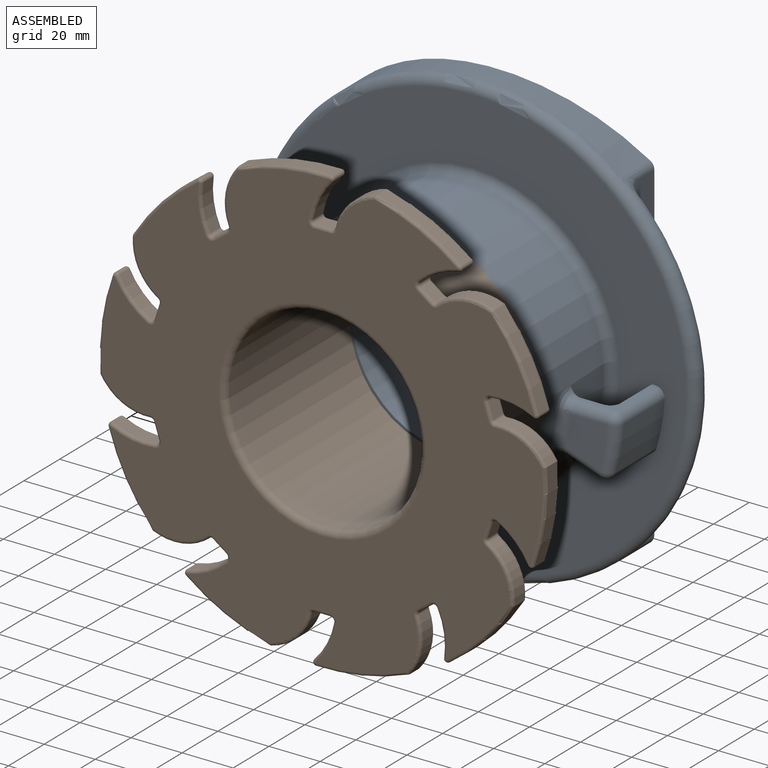
[diagram: assembled view]
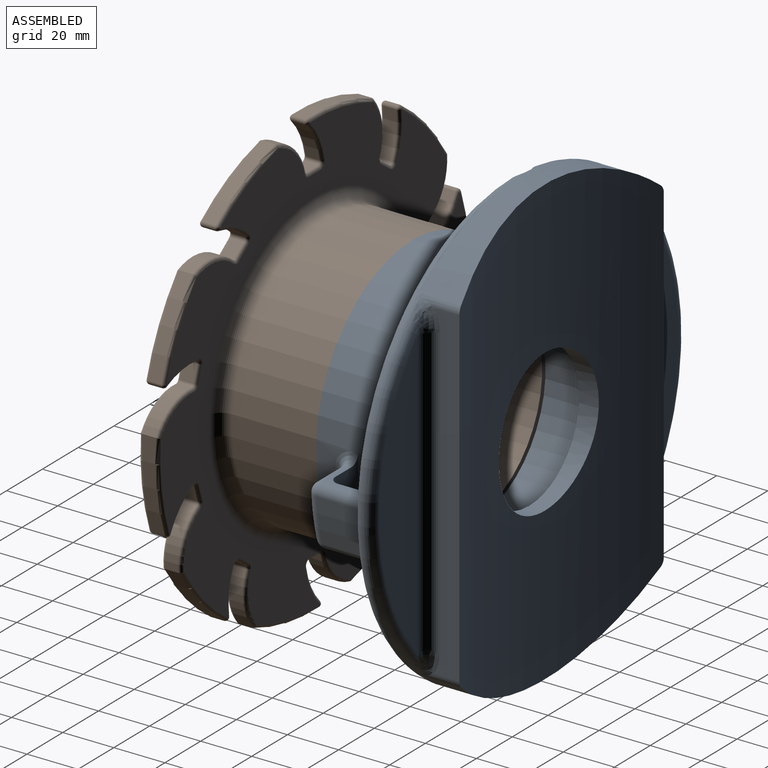
[diagram: assembled view, second angle]
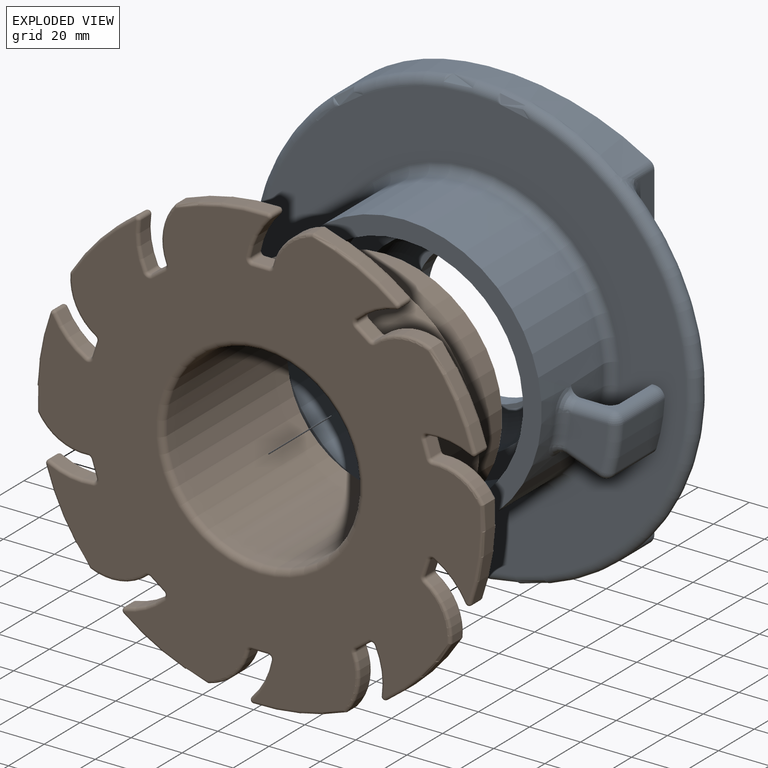
[diagram: exploded view]
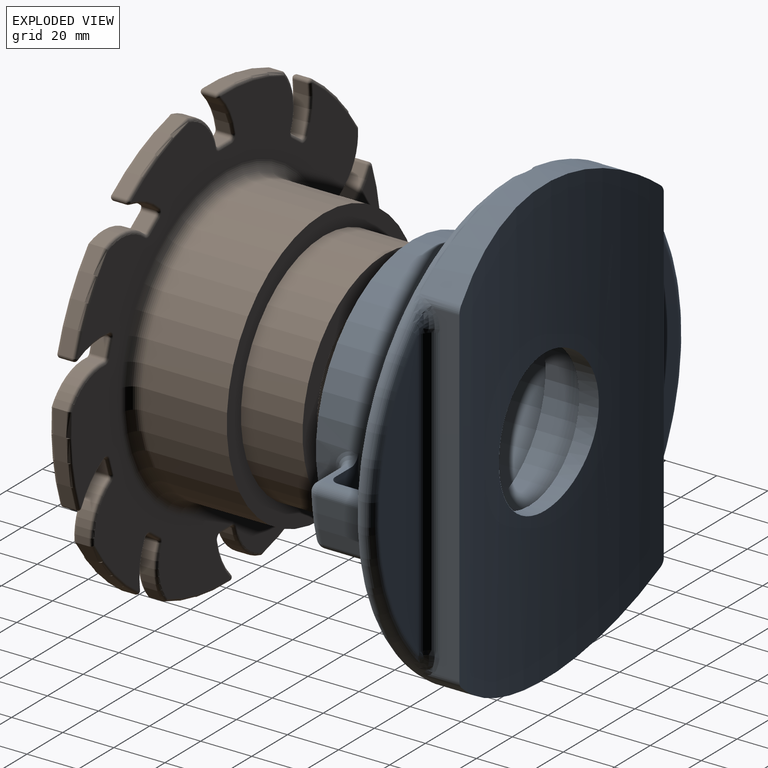
[diagram: exploded view, second angle]
ASSEMBLY  parts=2 mates=2
PART A: 50 faces, bbox 189.7x58.4x189.7 mm
  f0: cylinder r=38.1mm len=76.2mm, axis (0,1,0), area 2432.2mm2, adj f35,f49
  f1: cylinder r=53.98mm len=107.95mm, axis (0,1,0), area 11421.4mm2, adj f11,f18,f22,f24,f26,f27,f34,f47
  f2: cylinder r=87.63mm len=111.53mm, axis (0,-1,0), area 1474mm2, adj f7,f29,f31,f32
  f3: plane 167.64x167.64mm, normal (0,-1,0), area 11459.3mm2, adj f10,f13,f14,f15,f16,f21,f31,f34
  f4: plane 112.31x21.59mm, normal (0,1,0), area 1663.3mm2, adj f31,f38
  f5: cylinder r=87.63mm len=111.53mm, axis (0,-1,0), area 1474mm2, adj f7,f30,f31,f33
  f6: plane 112.31x21.59mm, normal (0,1,0), area 1663.3mm2, adj f31,f43
  f7: cylinder r=254mm len=175.27mm, axis (0,0,-1), area 16193.7mm2, adj f2,f5,f8,f9,f29,f30,f32,f33
  f8: plane 129.33x9.88mm, normal (1,0,0), area 997.2mm2, adj f7,f29,f30,f42,f43,f44
  f9: plane 129.33x9.88mm, normal (-1,0,0), area 997.2mm2, adj f7,f32,f33,f37,f38,f39
  f10: cylinder r=70.48mm len=24.11mm, axis (0,-1,0), area 437.5mm2, adj f3,f14,f15,f28
  f11: plane 26.36x17.28mm, normal (0,1,0), area 273mm2, adj f1,f14,f15,f18,f27,f28
  f12: plane 17.12x16.17mm, normal (0,-1,0), area 209.3mm2, adj f19,f20,f24,f25
  f13: cylinder r=75.56mm len=22.86mm, axis (0,-1,0), area 419.5mm2, adj f3,f16,f20,f21
  f14: plane 22.86x13.15mm, normal (-0.34,0,-0.94), area 46.1mm2, adj f3,f10,f11,f21,f25,f27,f28
  f15: plane 22.86x13.99mm, normal (0,0,1), area 46.1mm2, adj f3,f10,f11,f16,f18,f19,f28
  f16: cylinder r=3.81mm len=22.86mm, axis (0,-1,0), area 141.4mm2, adj f3,f13,f15,f17
  f17: sphere r=3.81mm, area 23.6mm2, adj f16,f19,f20
  f18: cylinder r=3.81mm len=3.8mm, axis (0,1,0), area 7.3mm2, adj f1,f11,f15,f22
  f19: cylinder r=3.81mm len=13.99mm, axis (1,0,0), area 83.3mm2, adj f12,f15,f17,f22
  f20: torus R=71.75mm, axis (0,-1,0), area 107.8mm2, adj f12,f13,f17,f23
  f21: cylinder r=3.81mm len=22.86mm, axis (0,-1,0), area 141.4mm2, adj f3,f13,f14,f23
  f22: bspline ~8.88x8.71mm, area 46.8mm2, adj f1,f18,f19,f24
  f23: sphere r=3.81mm, area 23.6mm2, adj f20,f21,f25
  f24: torus R=57.79mm, axis (0,-1,0), area 71.9mm2, adj f1,f12,f22,f26
  f25: cylinder r=3.81mm len=14.45mm, axis (-0.94,0,0.34), area 83.3mm2, adj f12,f14,f23,f26
  f26: bspline ~9.33x7.84mm, area 46.8mm2, adj f1,f24,f25,f27
  f27: cylinder r=3.81mm len=4.79mm, axis (0,1,0), area 7.3mm2, adj f1,f11,f14,f26
  f28: torus R=66.67mm, axis (0,-1,0), area 144.4mm2, adj f10,f11,f14,f15
  f29: cylinder r=3.81mm len=16.51mm, axis (0,-1,0), area 43.2mm2, adj f2,f7,f8,f45
  f30: cylinder r=3.81mm len=16.51mm, axis (0,-1,0), area 43.2mm2, adj f5,f7,f8,f41
  f31: torus R=83.82mm, axis (0,1,0), area 4914.3mm2, adj f2,f3,f4,f5,f6,f36,f37,f39
  f32: cylinder r=3.81mm len=16.51mm, axis (0,-1,0), area 43.2mm2, adj f2,f7,f9,f40
  f33: cylinder r=3.81mm len=16.51mm, axis (0,-1,0), area 43.2mm2, adj f5,f7,f9,f36
  f34: torus R=57.79mm, axis (0,1,0), area 2081.7mm2, adj f1,f3
  f35: torus R=27.94mm, axis (0,1,0), area 3450.3mm2, adj f0,f46
  f36: bspline ~7.62x6.5mm, area 18.2mm2, adj f31,f33,f37
  f37: bspline ~11.68x6.31mm, area 49.2mm2, adj f9,f31,f36,f38
  f38: cylinder r=5.08mm len=112.31mm, axis (0,0,-1), area 896.2mm2, adj f4,f9,f37,f39
  f39: bspline ~11.04x6.11mm, area 49.2mm2, adj f9,f31,f38,f40
  f40: bspline ~7.62x6.5mm, area 18.2mm2, adj f31,f32,f39
  f41: bspline ~7.62x6.5mm, area 18.2mm2, adj f30,f31,f42
  f42: bspline ~11.68x6.31mm, area 49.2mm2, adj f8,f31,f41,f43
  f43: cylinder r=5.08mm len=112.31mm, axis (0,0,1), area 896.2mm2, adj f6,f8,f42,f44
  f44: bspline ~11.04x6.11mm, area 49.2mm2, adj f8,f31,f43,f45
  f45: bspline ~7.62x6.5mm, area 18.2mm2, adj f29,f31,f44
  f46: cylinder r=27.94mm len=55.88mm, axis (0,-1,0), area 1221.1mm2, adj f7,f35
  f47: plane 107.95x107.95mm, normal (0,-1,0), area 2309mm2, adj f1,f48
  f48: cylinder r=46.67mm len=93.35mm, axis (0,-1,0), area 7448.6mm2, adj f47,f49
  f49: plane 93.35x93.35mm, normal (0,-1,0), area 2283mm2, adj f0,f48
PART B: 219 faces, bbox 189.7x69.9x189.7 mm
  f0: cylinder r=87.63mm len=33.25mm, axis (0,1,0), area 188.9mm2, adj f16,f71,f133,f204
  f1: plane 172.72x172.72mm, normal (0,1,0), area 9986.7mm2, adj f75,f76,f77,f78,f80,f81,f82,f83
  f2: cylinder r=87.63mm len=32.5mm, axis (0,1,0), area 188.9mm2, adj f65,f70,f144,f213
  f3: cylinder r=87.63mm len=36.57mm, axis (0,1,0), area 188.9mm2, adj f59,f64,f130,f199
  f4: cylinder r=87.63mm len=26.67mm, axis (0,1,0), area 188.9mm2, adj f53,f58,f116,f185
  f5: cylinder r=87.63mm len=36.31mm, axis (0,1,0), area 188.9mm2, adj f47,f52,f102,f171
  f6: cylinder r=87.63mm len=33.25mm, axis (0,1,0), area 188.9mm2, adj f41,f46,f88,f157
  f7: cylinder r=87.63mm len=32.5mm, axis (0,1,0), area 188.9mm2, adj f35,f40,f77,f148
  f8: cylinder r=87.63mm len=36.57mm, axis (0,1,0), area 188.9mm2, adj f29,f34,f91,f162
  f9: cylinder r=87.63mm len=26.67mm, axis (0,1,0), area 188.9mm2, adj f23,f28,f105,f176
  f10: cylinder r=87.63mm len=36.31mm, axis (0,1,0), area 188.9mm2, adj f17,f22,f119,f190
  f11: cylinder r=38.1mm len=76.2mm, axis (0,1,0), area 16113.3mm2, adj f74,f218
  f12: cylinder r=53.98mm len=107.95mm, axis (0,1,0), area 11198.2mm2, adj f75,f216
  f13: plane 172.72x172.72mm, normal (0,-1,0), area 15754.3mm2, adj f74,f146,f147,f148,f149,f151,f152,f153
  f14: cylinder r=29.83mm len=15.35mm, axis (0,-1,0), area 89mm2, adj f17,f18,f123,f194
  f15: plane 6.38x5.08mm, normal (0,0,1), area 32.4mm2, adj f18,f19,f127,f198
  f16: cylinder r=21.05mm len=15.89mm, axis (0,-1,0), area 119.3mm2, adj f0,f19,f131,f202
  f17: cylinder r=1.27mm len=5.08mm, axis (0,1,0), area 14.9mm2, adj f10,f14,f121,f192
  f18: cylinder r=1.27mm len=5.08mm, axis (0,-1,0), area 11.3mm2, adj f14,f15,f125,f196
  f19: cylinder r=1.27mm len=5.08mm, axis (0,-1,0), area 8.6mm2, adj f15,f16,f129,f200
  f20: cylinder r=29.83mm len=17.08mm, axis (0,-1,0), area 89mm2, adj f23,f24,f109,f180
  f21: plane 5.16x5.08mm, normal (-0.59,0,0.81), area 32.4mm2, adj f24,f25,f113,f184
  f22: cylinder r=21.05mm len=21.99mm, axis (0,-1,0), area 119.3mm2, adj f10,f25,f117,f188
  f23: cylinder r=1.27mm len=5.08mm, axis (0,1,0), area 14.9mm2, adj f9,f20,f107,f178
  f24: cylinder r=1.27mm len=5.08mm, axis (0,-1,0), area 11.3mm2, adj f20,f21,f111,f182
  f25: cylinder r=1.27mm len=5.08mm, axis (0,-1,0), area 8.6mm2, adj f21,f22,f115,f186
  f26: cylinder r=29.83mm len=12.29mm, axis (0,-1,0), area 89mm2, adj f29,f30,f95,f166
  f27: plane 6.06x5.08mm, normal (-0.95,0,0.31), area 32.4mm2, adj f30,f31,f99,f170
  f28: cylinder r=21.05mm len=19.95mm, axis (0,-1,0), area 119.3mm2, adj f9,f31,f103,f174
  f29: cylinder r=1.27mm len=5.08mm, axis (0,1,0), area 14.9mm2, adj f8,f26,f93,f164
  f30: cylinder r=1.27mm len=5.08mm, axis (0,-1,0), area 11.3mm2, adj f26,f27,f97,f168
  f31: cylinder r=1.27mm len=5.08mm, axis (0,-1,0), area 8.6mm2, adj f27,f28,f101,f172
  f32: cylinder r=29.83mm len=17.05mm, axis (0,-1,0), area 89mm2, adj f35,f36,f81,f152
  f33: plane 6.06x5.08mm, normal (-0.95,0,-0.31), area 32.4mm2, adj f36,f37,f85,f156
  f34: cylinder r=21.05mm len=19.78mm, axis (0,-1,0), area 119.3mm2, adj f8,f37,f89,f160
  f35: cylinder r=1.27mm len=5.08mm, axis (0,1,0), area 14.9mm2, adj f7,f32,f79,f150
  f36: cylinder r=1.27mm len=5.08mm, axis (0,-1,0), area 11.3mm2, adj f32,f33,f83,f154
  f37: cylinder r=1.27mm len=5.08mm, axis (0,-1,0), area 8.6mm2, adj f33,f34,f87,f158
  f38: cylinder r=29.83mm len=15.44mm, axis (0,-1,0), area 89mm2, adj f41,f42,f84,f153
  f39: plane 5.16x5.08mm, normal (-0.59,0,-0.81), area 32.4mm2, adj f42,f43,f80,f149
  f40: cylinder r=21.05mm len=22.05mm, axis (0,-1,0), area 119.3mm2, adj f7,f43,f76,f146
  f41: cylinder r=1.27mm len=5.08mm, axis (0,1,0), area 14.9mm2, adj f6,f38,f86,f155
  f42: cylinder r=1.27mm len=5.08mm, axis (0,-1,0), area 11.3mm2, adj f38,f39,f82,f151
  f43: cylinder r=1.27mm len=5.08mm, axis (0,-1,0), area 8.6mm2, adj f39,f40,f78,f147
  f44: cylinder r=29.83mm len=15.35mm, axis (0,-1,0), area 89mm2, adj f47,f48,f98,f167
  f45: plane 6.38x5.08mm, normal (0,0,-1), area 32.4mm2, adj f48,f49,f94,f163
  f46: cylinder r=21.05mm len=15.89mm, axis (0,-1,0), area 119.3mm2, adj f6,f49,f90,f159
  f47: cylinder r=1.27mm len=5.08mm, axis (0,1,0), area 14.9mm2, adj f5,f44,f100,f169
  f48: cylinder r=1.27mm len=5.08mm, axis (0,-1,0), area 11.3mm2, adj f44,f45,f96,f165
  f49: cylinder r=1.27mm len=5.08mm, axis (0,-1,0), area 8.6mm2, adj f45,f46,f92,f161
  f50: cylinder r=29.83mm len=17.08mm, axis (0,-1,0), area 89mm2, adj f53,f54,f112,f181
  f51: plane 5.16x5.08mm, normal (0.59,0,-0.81), area 32.4mm2, adj f54,f55,f108,f177
  f52: cylinder r=21.05mm len=21.99mm, axis (0,-1,0), area 119.3mm2, adj f5,f55,f104,f173
  f53: cylinder r=1.27mm len=5.08mm, axis (0,1,0), area 14.9mm2, adj f4,f50,f114,f183
  f54: cylinder r=1.27mm len=5.08mm, axis (0,-1,0), area 11.3mm2, adj f50,f51,f110,f179
  f55: cylinder r=1.27mm len=5.08mm, axis (0,-1,0), area 8.6mm2, adj f51,f52,f106,f175
  f56: cylinder r=29.83mm len=12.29mm, axis (0,-1,0), area 89mm2, adj f59,f60,f126,f195
  f57: plane 6.06x5.08mm, normal (0.95,0,-0.31), area 32.4mm2, adj f60,f61,f122,f191
  f58: cylinder r=21.05mm len=19.95mm, axis (0,-1,0), area 119.3mm2, adj f4,f61,f118,f187
  f59: cylinder r=1.27mm len=5.08mm, axis (0,1,0), area 14.9mm2, adj f3,f56,f128,f197
  f60: cylinder r=1.27mm len=5.08mm, axis (0,-1,0), area 11.3mm2, adj f56,f57,f124,f193
  f61: cylinder r=1.27mm len=5.08mm, axis (0,-1,0), area 8.6mm2, adj f57,f58,f120,f189
  f62: cylinder r=29.83mm len=17.05mm, axis (0,-1,0), area 89mm2, adj f65,f66,f140,f209
  f63: plane 6.06x5.08mm, normal (0.95,0,0.31), area 32.4mm2, adj f66,f67,f136,f205
  f64: cylinder r=21.05mm len=19.78mm, axis (0,-1,0), area 119.3mm2, adj f3,f67,f132,f201
  f65: cylinder r=1.27mm len=5.08mm, axis (0,1,0), area 14.9mm2, adj f2,f62,f142,f211
  f66: cylinder r=1.27mm len=5.08mm, axis (0,-1,0), area 11.3mm2, adj f62,f63,f138,f207
  f67: cylinder r=1.27mm len=5.08mm, axis (0,-1,0), area 8.6mm2, adj f63,f64,f134,f203
  f68: cylinder r=29.83mm len=15.44mm, axis (0,-1,0), area 89mm2, adj f71,f72,f137,f208
  f69: plane 5.16x5.08mm, normal (0.59,0,0.81), area 32.4mm2, adj f72,f73,f141,f212
  f70: cylinder r=21.05mm len=22.05mm, axis (0,-1,0), area 119.3mm2, adj f2,f73,f145,f215
  f71: cylinder r=1.27mm len=5.08mm, axis (0,1,0), area 14.9mm2, adj f0,f68,f135,f206
  f72: cylinder r=1.27mm len=5.08mm, axis (0,-1,0), area 11.3mm2, adj f68,f69,f139,f210
  f73: cylinder r=1.27mm len=5.08mm, axis (0,-1,0), area 8.6mm2, adj f69,f70,f143,f214
  f74: torus R=40.64mm, axis (0,-1,0), area 978.3mm2, adj f11,f13
  f75: torus R=59.06mm, axis (0,-1,0), area 2798.7mm2, adj f1,f12
  f76: torus R=19.78mm, axis (0,-1,0), area 45.6mm2, adj f1,f40,f77,f78
  f77: torus R=86.36mm, axis (0,-1,0), area 73.6mm2, adj f1,f7,f76,f79
  f78: torus R=2.54mm, axis (0,-1,0), area 4.6mm2, adj f1,f43,f76,f80
  f79: sphere r=1.27mm, area 3.7mm2, adj f35,f77,f81
  f80: cylinder r=1.27mm len=5.91mm, axis (0.81,0,-0.59), area 12.7mm2, adj f1,f39,f78,f82
  f81: torus R=31.1mm, axis (0,-1,0), area 35.5mm2, adj f1,f32,f79,f83
  f82: torus R=2.54mm, axis (0,-1,0), area 6.1mm2, adj f1,f42,f80,f84
  f83: torus R=2.54mm, axis (0,-1,0), area 6.1mm2, adj f1,f36,f81,f85
  f84: torus R=31.1mm, axis (0,-1,0), area 35.5mm2, adj f1,f38,f82,f86
  f85: cylinder r=1.27mm len=6.46mm, axis (0.31,0,-0.95), area 12.7mm2, adj f1,f33,f83,f87
  f86: sphere r=1.27mm, area 3.7mm2, adj f41,f84,f88
  f87: torus R=2.54mm, axis (0,-1,0), area 4.6mm2, adj f1,f37,f85,f89
  f88: torus R=86.36mm, axis (0,-1,0), area 73.6mm2, adj f1,f6,f86,f90
  f89: torus R=19.78mm, axis (0,-1,0), area 45.6mm2, adj f1,f34,f87,f91
  f90: torus R=19.78mm, axis (0,-1,0), area 45.6mm2, adj f1,f46,f88,f92
  f91: torus R=86.36mm, axis (0,-1,0), area 73.6mm2, adj f1,f8,f89,f93
  f92: torus R=2.54mm, axis (0,-1,0), area 4.6mm2, adj f1,f49,f90,f94
  f93: sphere r=1.27mm, area 3.7mm2, adj f29,f91,f95
  f94: cylinder r=1.27mm len=6.38mm, axis (1,0,0), area 12.7mm2, adj f1,f45,f92,f96
  f95: torus R=31.1mm, axis (0,-1,0), area 35.5mm2, adj f1,f26,f93,f97
  f96: torus R=2.54mm, axis (0,-1,0), area 6.1mm2, adj f1,f48,f94,f98
  f97: torus R=2.54mm, axis (0,-1,0), area 6.1mm2, adj f1,f30,f95,f99
  f98: torus R=31.1mm, axis (0,-1,0), area 35.5mm2, adj f1,f44,f96,f100
  f99: cylinder r=1.27mm len=6.46mm, axis (-0.31,0,-0.95), area 12.7mm2, adj f1,f27,f97,f101
  f100: sphere r=1.27mm, area 3.7mm2, adj f47,f98,f102
  f101: torus R=2.54mm, axis (0,-1,0), area 4.6mm2, adj f1,f31,f99,f103
  f102: torus R=86.36mm, axis (0,-1,0), area 73.6mm2, adj f1,f5,f100,f104
  f103: torus R=19.78mm, axis (0,-1,0), area 45.6mm2, adj f1,f28,f101,f105
  f104: torus R=19.78mm, axis (0,-1,0), area 45.6mm2, adj f1,f52,f102,f106
  f105: torus R=86.36mm, axis (0,-1,0), area 73.6mm2, adj f1,f9,f103,f107
  f106: torus R=2.54mm, axis (0,-1,0), area 4.6mm2, adj f1,f55,f104,f108
  f107: sphere r=1.27mm, area 3.7mm2, adj f23,f105,f109
  f108: cylinder r=1.27mm len=5.91mm, axis (0.81,0,0.59), area 12.7mm2, adj f1,f51,f106,f110
  f109: torus R=31.1mm, axis (0,-1,0), area 35.5mm2, adj f1,f20,f107,f111
  f110: torus R=2.54mm, axis (0,-1,0), area 6.1mm2, adj f1,f54,f108,f112
  f111: torus R=2.54mm, axis (0,-1,0), area 6.1mm2, adj f1,f24,f109,f113
  f112: torus R=31.1mm, axis (0,-1,0), area 35.5mm2, adj f1,f50,f110,f114
  f113: cylinder r=1.27mm len=5.91mm, axis (-0.81,0,-0.59), area 12.7mm2, adj f1,f21,f111,f115
  f114: sphere r=1.27mm, area 3.7mm2, adj f53,f112,f116
  f115: torus R=2.54mm, axis (0,-1,0), area 4.6mm2, adj f1,f25,f113,f117
  f116: torus R=86.36mm, axis (0,-1,0), area 73.6mm2, adj f1,f4,f114,f118
  f117: torus R=19.78mm, axis (0,-1,0), area 45.6mm2, adj f1,f22,f115,f119
  f118: torus R=19.78mm, axis (0,-1,0), area 45.6mm2, adj f1,f58,f116,f120
  f119: torus R=86.36mm, axis (0,-1,0), area 73.6mm2, adj f1,f10,f117,f121
  f120: torus R=2.54mm, axis (0,-1,0), area 4.6mm2, adj f1,f61,f118,f122
  f121: sphere r=1.27mm, area 3.7mm2, adj f17,f119,f123
  f122: cylinder r=1.27mm len=6.46mm, axis (0.31,0,0.95), area 12.7mm2, adj f1,f57,f120,f124
  f123: torus R=31.1mm, axis (0,-1,0), area 35.5mm2, adj f1,f14,f121,f125
  f124: torus R=2.54mm, axis (0,-1,0), area 6.1mm2, adj f1,f60,f122,f126
  f125: torus R=2.54mm, axis (0,-1,0), area 6.1mm2, adj f1,f18,f123,f127
  f126: torus R=31.1mm, axis (0,-1,0), area 35.5mm2, adj f1,f56,f124,f128
  f127: cylinder r=1.27mm len=6.38mm, axis (-1,0,0), area 12.7mm2, adj f1,f15,f125,f129
  f128: sphere r=1.27mm, area 3.7mm2, adj f59,f126,f130
  f129: torus R=2.54mm, axis (0,-1,0), area 4.6mm2, adj f1,f19,f127,f131
  f130: torus R=86.36mm, axis (0,-1,0), area 73.6mm2, adj f1,f3,f128,f132
  f131: torus R=19.78mm, axis (0,-1,0), area 45.6mm2, adj f1,f16,f129,f133
  f132: torus R=19.78mm, axis (0,-1,0), area 45.6mm2, adj f1,f64,f130,f134
  f133: torus R=86.36mm, axis (0,-1,0), area 73.6mm2, adj f0,f1,f131,f135
  f134: torus R=2.54mm, axis (0,-1,0), area 4.6mm2, adj f1,f67,f132,f136
  f135: sphere r=1.27mm, area 3.7mm2, adj f71,f133,f137
  f136: cylinder r=1.27mm len=6.46mm, axis (-0.31,0,0.95), area 12.7mm2, adj f1,f63,f134,f138
  f137: torus R=31.1mm, axis (0,-1,0), area 35.5mm2, adj f1,f68,f135,f139
  f138: torus R=2.54mm, axis (0,-1,0), area 6.1mm2, adj f1,f66,f136,f140
  f139: torus R=2.54mm, axis (0,-1,0), area 6.1mm2, adj f1,f72,f137,f141
  f140: torus R=31.1mm, axis (0,-1,0), area 35.5mm2, adj f1,f62,f138,f142
  f141: cylinder r=1.27mm len=5.91mm, axis (-0.81,0,0.59), area 12.7mm2, adj f1,f69,f139,f143
  f142: sphere r=1.27mm, area 3.7mm2, adj f65,f140,f144
  f143: torus R=2.54mm, axis (0,-1,0), area 4.6mm2, adj f1,f73,f141,f145
  f144: torus R=86.36mm, axis (0,-1,0), area 73.6mm2, adj f1,f2,f142,f145
  f145: torus R=19.78mm, axis (0,-1,0), area 45.6mm2, adj f1,f70,f143,f144
  f146: torus R=19.78mm, axis (0,-1,0), area 45.6mm2, adj f13,f40,f147,f148
  f147: torus R=2.54mm, axis (0,-1,0), area 4.6mm2, adj f13,f43,f146,f149
  f148: torus R=86.36mm, axis (0,-1,0), area 73.6mm2, adj f7,f13,f146,f150
  f149: cylinder r=1.27mm len=5.91mm, axis (0.81,0,-0.59), area 12.7mm2, adj f13,f39,f147,f151
  f150: sphere r=1.27mm, area 3.7mm2, adj f35,f148,f152
  f151: torus R=2.54mm, axis (0,-1,0), area 6.1mm2, adj f13,f42,f149,f153
  f152: torus R=31.1mm, axis (0,-1,0), area 35.5mm2, adj f13,f32,f150,f154
  f153: torus R=31.1mm, axis (0,-1,0), area 35.5mm2, adj f13,f38,f151,f155
  f154: torus R=2.54mm, axis (0,-1,0), area 6.1mm2, adj f13,f36,f152,f156
  f155: sphere r=1.27mm, area 3.7mm2, adj f41,f153,f157
  f156: cylinder r=1.27mm len=6.46mm, axis (0.31,0,-0.95), area 12.7mm2, adj f13,f33,f154,f158
  f157: torus R=86.36mm, axis (0,-1,0), area 73.6mm2, adj f6,f13,f155,f159
  f158: torus R=2.54mm, axis (0,-1,0), area 4.6mm2, adj f13,f37,f156,f160
  f159: torus R=19.78mm, axis (0,-1,0), area 45.6mm2, adj f13,f46,f157,f161
  f160: torus R=19.78mm, axis (0,-1,0), area 45.6mm2, adj f13,f34,f158,f162
  f161: torus R=2.54mm, axis (0,-1,0), area 4.6mm2, adj f13,f49,f159,f163
  f162: torus R=86.36mm, axis (0,-1,0), area 73.6mm2, adj f8,f13,f160,f164
  f163: cylinder r=1.27mm len=6.38mm, axis (1,0,0), area 12.7mm2, adj f13,f45,f161,f165
  f164: sphere r=1.27mm, area 3.7mm2, adj f29,f162,f166
  f165: torus R=2.54mm, axis (0,-1,0), area 6.1mm2, adj f13,f48,f163,f167
  f166: torus R=31.1mm, axis (0,-1,0), area 35.5mm2, adj f13,f26,f164,f168
  f167: torus R=31.1mm, axis (0,-1,0), area 35.5mm2, adj f13,f44,f165,f169
  f168: torus R=2.54mm, axis (0,-1,0), area 6.1mm2, adj f13,f30,f166,f170
  f169: sphere r=1.27mm, area 3.7mm2, adj f47,f167,f171
  f170: cylinder r=1.27mm len=6.46mm, axis (-0.31,0,-0.95), area 12.7mm2, adj f13,f27,f168,f172
  f171: torus R=86.36mm, axis (0,-1,0), area 73.6mm2, adj f5,f13,f169,f173
  f172: torus R=2.54mm, axis (0,-1,0), area 4.6mm2, adj f13,f31,f170,f174
  f173: torus R=19.78mm, axis (0,-1,0), area 45.6mm2, adj f13,f52,f171,f175
  f174: torus R=19.78mm, axis (0,-1,0), area 45.6mm2, adj f13,f28,f172,f176
  f175: torus R=2.54mm, axis (0,-1,0), area 4.6mm2, adj f13,f55,f173,f177
  f176: torus R=86.36mm, axis (0,-1,0), area 73.6mm2, adj f9,f13,f174,f178
  f177: cylinder r=1.27mm len=5.91mm, axis (0.81,0,0.59), area 12.7mm2, adj f13,f51,f175,f179
  f178: sphere r=1.27mm, area 3.7mm2, adj f23,f176,f180
  f179: torus R=2.54mm, axis (0,-1,0), area 6.1mm2, adj f13,f54,f177,f181
  f180: torus R=31.1mm, axis (0,-1,0), area 35.5mm2, adj f13,f20,f178,f182
  f181: torus R=31.1mm, axis (0,-1,0), area 35.5mm2, adj f13,f50,f179,f183
  f182: torus R=2.54mm, axis (0,-1,0), area 6.1mm2, adj f13,f24,f180,f184
  f183: sphere r=1.27mm, area 3.7mm2, adj f53,f181,f185
  f184: cylinder r=1.27mm len=5.91mm, axis (-0.81,0,-0.59), area 12.7mm2, adj f13,f21,f182,f186
  f185: torus R=86.36mm, axis (0,-1,0), area 73.6mm2, adj f4,f13,f183,f187
  f186: torus R=2.54mm, axis (0,-1,0), area 4.6mm2, adj f13,f25,f184,f188
  f187: torus R=19.78mm, axis (0,-1,0), area 45.6mm2, adj f13,f58,f185,f189
  f188: torus R=19.78mm, axis (0,-1,0), area 45.6mm2, adj f13,f22,f186,f190
  f189: torus R=2.54mm, axis (0,-1,0), area 4.6mm2, adj f13,f61,f187,f191
  f190: torus R=86.36mm, axis (0,-1,0), area 73.6mm2, adj f10,f13,f188,f192
  f191: cylinder r=1.27mm len=6.46mm, axis (0.31,0,0.95), area 12.7mm2, adj f13,f57,f189,f193
  f192: sphere r=1.27mm, area 3.7mm2, adj f17,f190,f194
  f193: torus R=2.54mm, axis (0,-1,0), area 6.1mm2, adj f13,f60,f191,f195
  f194: torus R=31.1mm, axis (0,-1,0), area 35.5mm2, adj f13,f14,f192,f196
  f195: torus R=31.1mm, axis (0,-1,0), area 35.5mm2, adj f13,f56,f193,f197
  f196: torus R=2.54mm, axis (0,-1,0), area 6.1mm2, adj f13,f18,f194,f198
  f197: sphere r=1.27mm, area 3.7mm2, adj f59,f195,f199
  f198: cylinder r=1.27mm len=6.38mm, axis (-1,0,0), area 12.7mm2, adj f13,f15,f196,f200
  f199: torus R=86.36mm, axis (0,-1,0), area 73.6mm2, adj f3,f13,f197,f201
  f200: torus R=2.54mm, axis (0,-1,0), area 4.6mm2, adj f13,f19,f198,f202
  f201: torus R=19.78mm, axis (0,-1,0), area 45.6mm2, adj f13,f64,f199,f203
  f202: torus R=19.78mm, axis (0,-1,0), area 45.6mm2, adj f13,f16,f200,f204
  f203: torus R=2.54mm, axis (0,-1,0), area 4.6mm2, adj f13,f67,f201,f205
  f204: torus R=86.36mm, axis (0,-1,0), area 73.6mm2, adj f0,f13,f202,f206
  f205: cylinder r=1.27mm len=6.46mm, axis (-0.31,0,0.95), area 12.7mm2, adj f13,f63,f203,f207
  f206: sphere r=1.27mm, area 3.7mm2, adj f71,f204,f208
  f207: torus R=2.54mm, axis (0,-1,0), area 6.1mm2, adj f13,f66,f205,f209
  f208: torus R=31.1mm, axis (0,-1,0), area 35.5mm2, adj f13,f68,f206,f210
  f209: torus R=31.1mm, axis (0,-1,0), area 35.5mm2, adj f13,f62,f207,f211
  f210: torus R=2.54mm, axis (0,-1,0), area 6.1mm2, adj f13,f72,f208,f212
  f211: sphere r=1.27mm, area 3.7mm2, adj f65,f209,f213
  f212: cylinder r=1.27mm len=5.91mm, axis (-0.81,0,0.59), area 12.7mm2, adj f13,f69,f210,f214
  f213: torus R=86.36mm, axis (0,-1,0), area 73.6mm2, adj f2,f13,f211,f215
  f214: torus R=2.54mm, axis (0,-1,0), area 4.6mm2, adj f13,f73,f212,f215
  f215: torus R=19.78mm, axis (0,-1,0), area 45.6mm2, adj f13,f70,f213,f214
  f216: plane 107.95x107.95mm, normal (0,1,0), area 2494mm2, adj f12,f217
  f217: cylinder r=46.04mm len=92.08mm, axis (0,-1,0), area 6979.9mm2, adj f216,f218
  f218: plane 92.08x92.08mm, normal (0,1,0), area 2098.1mm2, adj f11,f217
PLACE A t=(5.22,-83.44,-63.41)mm
PLACE B t=(5.22,-83.44,-63.41)mm
MATE planar A.f10 <-> B.f11  axis (0,-1,0) through (5.22,-83.44,-63.41)mm
MATE cylindrical A.f48 <-> B.f217  axis (0,-1,0) through (5.22,-70.74,-63.41)mm
